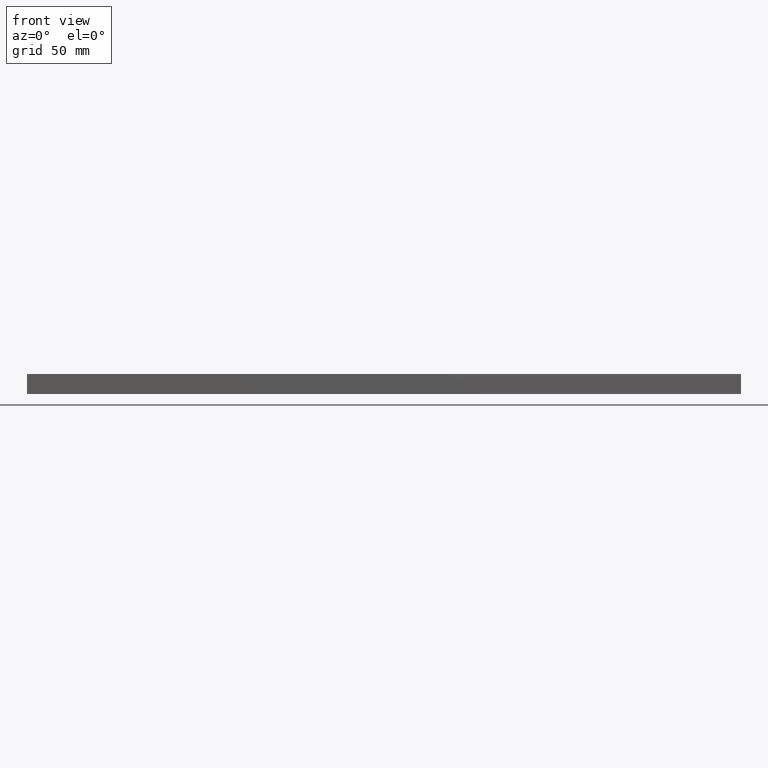
[diagram: clean part render]
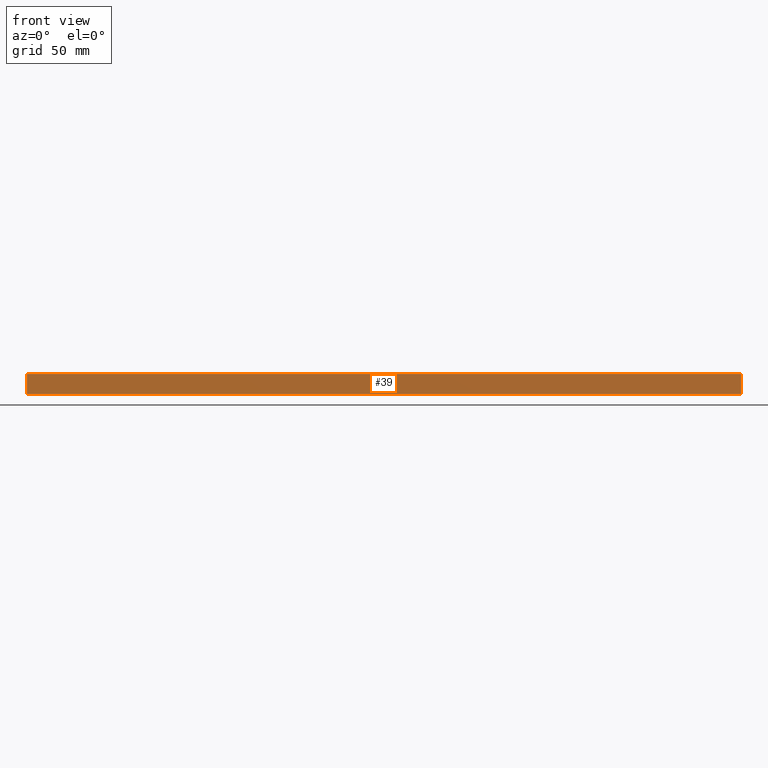
[diagram: same view with one face highlighted and labeled with its STEP entity id]
A machine part, front view. The second image highlights one B-rep face of the part: STEP entity #39.
In plain terms, the highlighted planar face has unit normal (0, 1, 0).
Its self-contained STEP definition (entity closure, byte-faithful):
#19 = EDGE_CURVE ( 'NONE', #315, #181, #403, .T. ) ;
#26 = DIRECTION ( 'NONE',  ( -0.0000000000000000000, -0.0000000000000000000, -1.000000000000000000 ) ) ;
#30 = DIRECTION ( 'NONE',  ( 1.000000000000000000, 0.0000000000000000000, 0.0000000000000000000 ) ) ;
#33 = CARTESIAN_POINT ( 'NONE',  ( 0.0000000000000000000, 0.0000000000000000000, -6.000000000000000000 ) ) ;
#37 = CARTESIAN_POINT ( 'NONE',  ( 430.0000000000000000, 0.0000000000000000000, -6.000000000000000000 ) ) ;
#39 = ADVANCED_FACE ( 'NONE', ( #420 ), #54, .F. ) ;
#41 = EDGE_CURVE ( 'NONE', #181, #332, #342, .T. ) ;
#45 = DIRECTION ( 'NONE',  ( 0.0000000000000000000, -0.0000000000000000000, 1.000000000000000000 ) ) ;
#50 = DIRECTION ( 'NONE',  ( 0.0000000000000000000, 1.000000000000000000, 0.0000000000000000000 ) ) ;
#52 = EDGE_CURVE ( 'NONE', #361, #332, #441, .T. ) ;
#54 = PLANE ( 'NONE',  #87 ) ;
#57 = DIRECTION ( 'NONE',  ( -0.0000000000000000000, -0.0000000000000000000, -1.000000000000000000 ) ) ;
#58 = CARTESIAN_POINT ( 'NONE',  ( 430.0000000000000000, 0.0000000000000000000, 6.000000000000000000 ) ) ;
#68 = ORIENTED_EDGE ( 'NONE', *, *, #52, .F. ) ;
#70 = CARTESIAN_POINT ( 'NONE',  ( 0.0000000000000000000, 0.0000000000000000000, 6.000000000000000000 ) ) ;
#77 = CARTESIAN_POINT ( 'NONE',  ( 0.0000000000000000000, 0.0000000000000000000, 6.000000000000000000 ) ) ;
#87 = AXIS2_PLACEMENT_3D ( 'NONE', #77, #50, #45 ) ;
#97 = EDGE_CURVE ( 'NONE', #315, #361, #438, .T. ) ;
#102 = CARTESIAN_POINT ( 'NONE',  ( 0.0000000000000000000, 0.0000000000000000000, 6.000000000000000000 ) ) ;
#126 = VECTOR ( 'NONE', #26, 1000.000000000000000 ) ;
#181 = VERTEX_POINT ( 'NONE', #350 ) ;
#203 = ORIENTED_EDGE ( 'NONE', *, *, #97, .F. ) ;
#212 = CARTESIAN_POINT ( 'NONE',  ( 0.0000000000000000000, 0.0000000000000000000, 6.000000000000000000 ) ) ;
#259 = ORIENTED_EDGE ( 'NONE', *, *, #19, .T. ) ;
#296 = VECTOR ( 'NONE', #57, 1000.000000000000000 ) ;
#315 = VERTEX_POINT ( 'NONE', #102 ) ;
#332 = VERTEX_POINT ( 'NONE', #37 ) ;
#342 = LINE ( 'NONE', #33, #411 ) ;
#343 = DIRECTION ( 'NONE',  ( 1.000000000000000000, 0.0000000000000000000, 0.0000000000000000000 ) ) ;
#350 = CARTESIAN_POINT ( 'NONE',  ( 0.0000000000000000000, 0.0000000000000000000, -6.000000000000000000 ) ) ;
#354 = ORIENTED_EDGE ( 'NONE', *, *, #41, .T. ) ;
#356 = EDGE_LOOP ( 'NONE', ( #354, #68, #203, #259 ) ) ;
#361 = VERTEX_POINT ( 'NONE', #58 ) ;
#378 = CARTESIAN_POINT ( 'NONE',  ( 430.0000000000000000, 0.0000000000000000000, 6.000000000000000000 ) ) ;
#388 = VECTOR ( 'NONE', #343, 1000.000000000000000 ) ;
#403 = LINE ( 'NONE', #70, #296 ) ;
#411 = VECTOR ( 'NONE', #30, 1000.000000000000000 ) ;
#420 = FACE_OUTER_BOUND ( 'NONE', #356, .T. ) ;
#438 = LINE ( 'NONE', #212, #388 ) ;
#441 = LINE ( 'NONE', #378, #126 ) ;